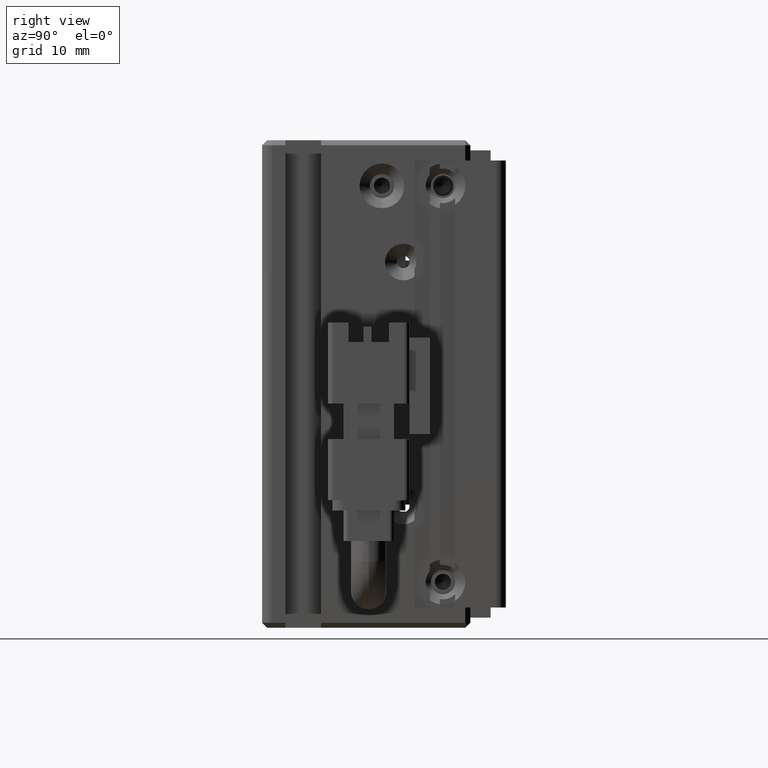
[diagram: clean part render]
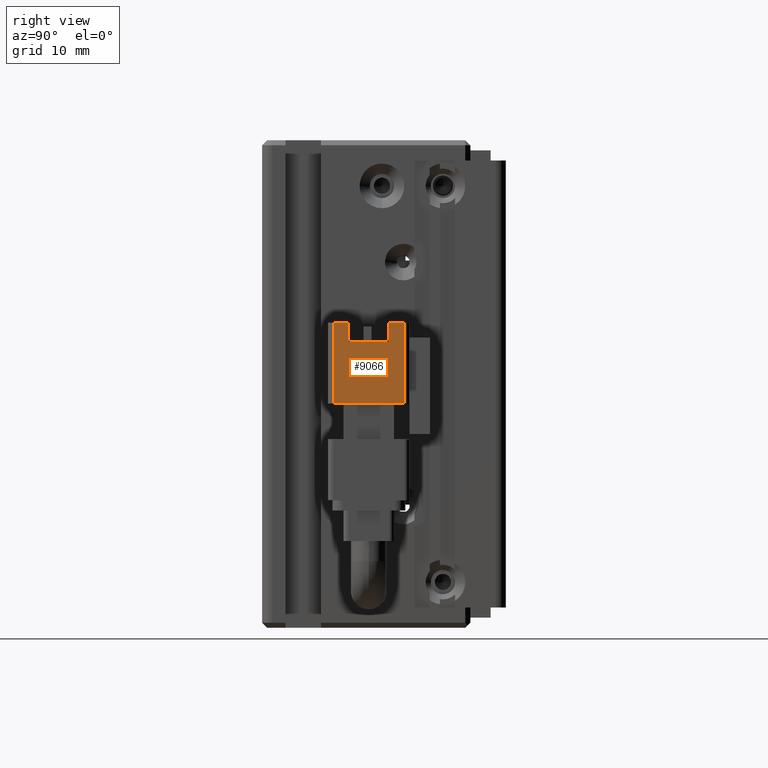
[diagram: same view with one face highlighted and labeled with its STEP entity id]
A machine part, right view. The second image highlights one B-rep face of the part: STEP entity #9066.
In plain terms, the highlighted planar face has unit normal (-1, -0, -0).
Its self-contained STEP definition (entity closure, byte-faithful):
#630 = CARTESIAN_POINT ( 'NONE',  ( 78.42537974683537500, 17.99073232304860100, -116.9500000000000000 ) ) ;
#1386 = VECTOR ( 'NONE', #32113, 1000.000000000000000 ) ;
#1718 = CARTESIAN_POINT ( 'NONE',  ( 78.42537974683534700, 24.99073232304860100, -108.9500000000000000 ) ) ;
#2023 = EDGE_LOOP ( 'NONE', ( #30130, #34002, #29813, #5579, #32699, #32125, #29296, #28798 ) ) ;
#3987 = VERTEX_POINT ( 'NONE', #22963 ) ;
#5579 = ORIENTED_EDGE ( 'NONE', *, *, #17392, .T. ) ;
#5606 = AXIS2_PLACEMENT_3D ( 'NONE', #26474, #38326, #35623 ) ;
#5830 = CARTESIAN_POINT ( 'NONE',  ( 78.42537974683534700, 24.99073232304860100, -108.9500000000000000 ) ) ;
#6910 = LINE ( 'NONE', #19064, #36449 ) ;
#7516 = CARTESIAN_POINT ( 'NONE',  ( 78.42537974683534700, 24.99073232304860100, -110.8686299809477400 ) ) ;
#8071 = DIRECTION ( 'NONE',  ( -1.041348031262155300E-030, 5.551115123125780200E-017, 1.000000000000000000 ) ) ;
#8336 = CARTESIAN_POINT ( 'NONE',  ( 78.42537974683536100, 19.49073232304860100, -108.9500000000000000 ) ) ;
#9066 = ADVANCED_FACE ( 'NONE', ( #21472 ), #35501, .F. ) ;
#9879 = VECTOR ( 'NONE', #32301, 1000.000000000000000 ) ;
#10352 = EDGE_CURVE ( 'NONE', #22076, #3987, #14103, .T. ) ;
#10593 = VECTOR ( 'NONE', #28749, 1000.000000000000000 ) ;
#11294 = EDGE_CURVE ( 'NONE', #16097, #27294, #6910, .T. ) ;
#13110 = CARTESIAN_POINT ( 'NONE',  ( 78.42537974683536100, 19.49073232304860100, -108.9500000000000000 ) ) ;
#13373 = VERTEX_POINT ( 'NONE', #630 ) ;
#13979 = CARTESIAN_POINT ( 'NONE',  ( 78.42537974683537500, 17.99073232304860100, -108.9500000000000000 ) ) ;
#14103 = LINE ( 'NONE', #13110, #9879 ) ;
#15385 = CARTESIAN_POINT ( 'NONE',  ( 78.42537974683537500, 17.99073232304860100, -108.9500000000000000 ) ) ;
#16097 = VERTEX_POINT ( 'NONE', #26718 ) ;
#16505 = CARTESIAN_POINT ( 'NONE',  ( 78.42537974683534700, 24.99073232304860100, -116.9500000000000000 ) ) ;
#16765 = CARTESIAN_POINT ( 'NONE',  ( 78.42537974683534700, 24.99073232304860100, -108.9500000000000000 ) ) ;
#17170 = VERTEX_POINT ( 'NONE', #20870 ) ;
#17392 = EDGE_CURVE ( 'NONE', #22076, #22307, #33674, .T. ) ;
#18667 = VECTOR ( 'NONE', #19914, 1000.000000000000000 ) ;
#18912 = LINE ( 'NONE', #1718, #37172 ) ;
#19064 = CARTESIAN_POINT ( 'NONE',  ( 78.42537974683534700, 23.49073232304860100, -108.9500000000000000 ) ) ;
#19588 = EDGE_CURVE ( 'NONE', #3987, #16097, #34033, .T. ) ;
#19914 = DIRECTION ( 'NONE',  ( 3.304235192336770000E-015, -1.000000000000000000, 5.551115123125780200E-017 ) ) ;
#20870 = CARTESIAN_POINT ( 'NONE',  ( 78.42537974683534700, 24.99073232304860100, -116.9500000000000000 ) ) ;
#21333 = VECTOR ( 'NONE', #28486, 1000.000000000000000 ) ;
#21472 = FACE_OUTER_BOUND ( 'NONE', #2023, .T. ) ;
#21478 = EDGE_CURVE ( 'NONE', #13373, #22307, #30492, .T. ) ;
#22076 = VERTEX_POINT ( 'NONE', #8336 ) ;
#22307 = VERTEX_POINT ( 'NONE', #15385 ) ;
#22963 = CARTESIAN_POINT ( 'NONE',  ( 78.42537974683536100, 19.49073232304860100, -110.8686299809477400 ) ) ;
#23557 = CARTESIAN_POINT ( 'NONE',  ( 78.42537974683534700, 23.49073232304860100, -108.9500000000000000 ) ) ;
#24384 = VECTOR ( 'NONE', #29089, 1000.000000000000000 ) ;
#26474 = CARTESIAN_POINT ( 'NONE',  ( 78.42537974683534700, 24.99073232304860100, -108.9500000000000000 ) ) ;
#26592 = EDGE_CURVE ( 'NONE', #17170, #13373, #33675, .T. ) ;
#26718 = CARTESIAN_POINT ( 'NONE',  ( 78.42537974683534700, 23.49073232304860100, -110.8686299809477400 ) ) ;
#27294 = VERTEX_POINT ( 'NONE', #23557 ) ;
#28486 = DIRECTION ( 'NONE',  ( -3.304235192336770000E-015, 1.000000000000000000, -5.551115123125780200E-017 ) ) ;
#28613 = CARTESIAN_POINT ( 'NONE',  ( 78.42537974683534700, 24.99073232304860100, -108.9500000000000000 ) ) ;
#28749 = DIRECTION ( 'NONE',  ( -3.304235192336770000E-015, 1.000000000000000000, -5.551115123125780200E-017 ) ) ;
#28798 = ORIENTED_EDGE ( 'NONE', *, *, #37293, .F. ) ;
#29089 = DIRECTION ( 'NONE',  ( -1.041348031262155300E-030, 5.551115123125780200E-017, 1.000000000000000000 ) ) ;
#29296 = ORIENTED_EDGE ( 'NONE', *, *, #33407, .F. ) ;
#29813 = ORIENTED_EDGE ( 'NONE', *, *, #10352, .F. ) ;
#30130 = ORIENTED_EDGE ( 'NONE', *, *, #11294, .F. ) ;
#30492 = LINE ( 'NONE', #13979, #24384 ) ;
#32113 = DIRECTION ( 'NONE',  ( 3.304235192336770000E-015, -1.000000000000000000, 5.551115123125780200E-017 ) ) ;
#32125 = ORIENTED_EDGE ( 'NONE', *, *, #26592, .F. ) ;
#32301 = DIRECTION ( 'NONE',  ( 1.041348031262155300E-030, -5.551115123125780200E-017, -1.000000000000000000 ) ) ;
#32699 = ORIENTED_EDGE ( 'NONE', *, *, #21478, .F. ) ;
#33407 = EDGE_CURVE ( 'NONE', #35353, #17170, #18912, .T. ) ;
#33674 = LINE ( 'NONE', #16765, #18667 ) ;
#33675 = LINE ( 'NONE', #16505, #1386 ) ;
#34002 = ORIENTED_EDGE ( 'NONE', *, *, #19588, .F. ) ;
#34033 = LINE ( 'NONE', #7516, #10593 ) ;
#35353 = VERTEX_POINT ( 'NONE', #5830 ) ;
#35501 = PLANE ( 'NONE',  #5606 ) ;
#35623 = DIRECTION ( 'NONE',  ( -1.041348031262155300E-030, 5.551115123125780200E-017, 1.000000000000000000 ) ) ;
#36449 = VECTOR ( 'NONE', #8071, 1000.000000000000000 ) ;
#37172 = VECTOR ( 'NONE', #37900, 1000.000000000000000 ) ;
#37234 = LINE ( 'NONE', #28613, #21333 ) ;
#37293 = EDGE_CURVE ( 'NONE', #27294, #35353, #37234, .T. ) ;
#37900 = DIRECTION ( 'NONE',  ( 1.041348031262155300E-030, -5.551115123125780200E-017, -1.000000000000000000 ) ) ;
#38326 = DIRECTION ( 'NONE',  ( -1.000000000000000000, -3.304235192336770000E-015, -8.579261317967046800E-031 ) ) ;